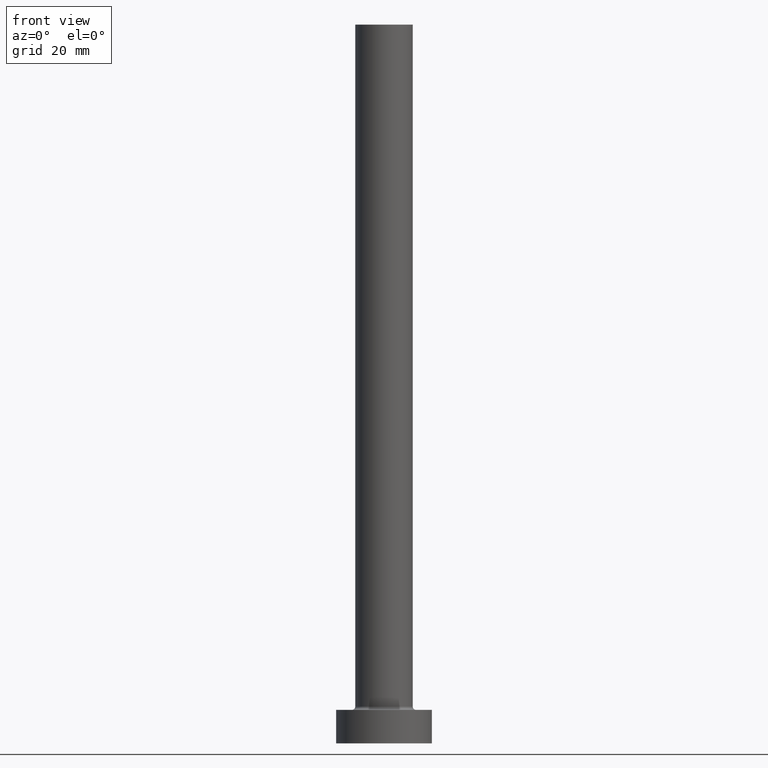
[diagram: clean part render]
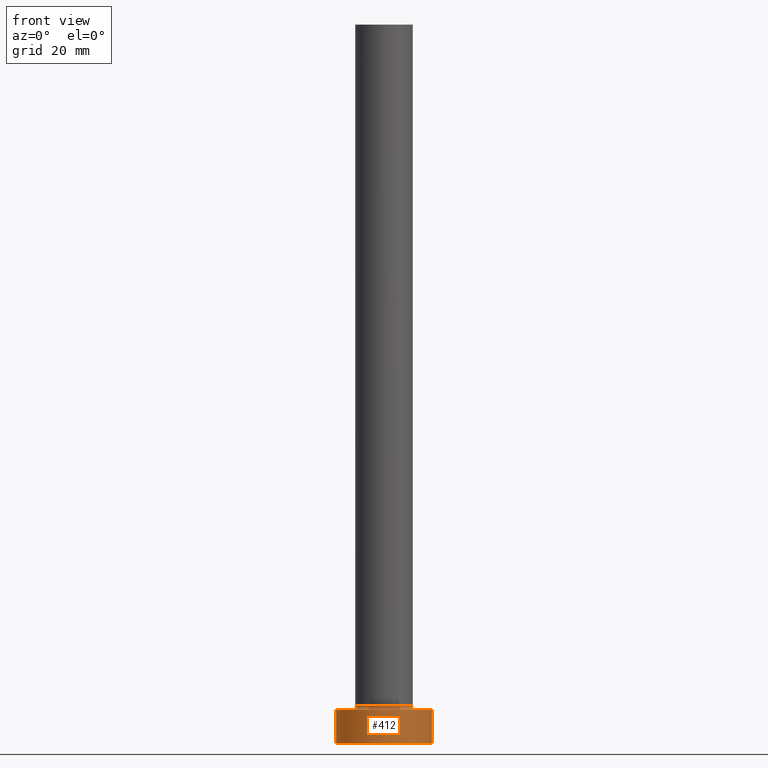
[diagram: same view with one face highlighted and labeled with its STEP entity id]
A machine part, front view. The second image highlights one B-rep face of the part: STEP entity #412.
In plain terms, the highlighted cylindrical surface (partial cylindrical patch) has radius 10 mm, axis along (-0, -0, -1).
Its self-contained STEP definition (entity closure, byte-faithful):
#4 = ORIENTED_EDGE ( 'NONE', *, *, #384, .F. ) ;
#11 = CIRCLE ( 'NONE', #103, 10.00000000000000000 ) ;
#14 = CARTESIAN_POINT ( 'NONE',  ( -10.00000000000000000, 0.000000000000000000, 7.000000000000000000 ) ) ;
#16 = LINE ( 'NONE', #14, #440 ) ;
#21 = DIRECTION ( 'NONE',  ( 0.000000000000000000, 0.000000000000000000, 1.000000000000000000 ) ) ;
#29 = CARTESIAN_POINT ( 'NONE',  ( 0.000000000000000000, 0.000000000000000000, 0.000000000000000000 ) ) ;
#89 = LINE ( 'NONE', #255, #253 ) ;
#91 = ORIENTED_EDGE ( 'NONE', *, *, #201, .F. ) ;
#94 = DIRECTION ( 'NONE',  ( 1.000000000000000000, 0.000000000000000000, 0.000000000000000000 ) ) ;
#103 = AXIS2_PLACEMENT_3D ( 'NONE', #29, #209, #94 ) ;
#106 = ORIENTED_EDGE ( 'NONE', *, *, #194, .T. ) ;
#113 = CARTESIAN_POINT ( 'NONE',  ( 10.00000000000000000, 1.224646799147353256E-15, 7.000000000000000000 ) ) ;
#134 = AXIS2_PLACEMENT_3D ( 'NONE', #233, #197, #341 ) ;
#142 = ORIENTED_EDGE ( 'NONE', *, *, #338, .T. ) ;
#156 = DIRECTION ( 'NONE',  ( -0.000000000000000000, -0.000000000000000000, -1.000000000000000000 ) ) ;
#158 = VERTEX_POINT ( 'NONE', #113 ) ;
#160 = DIRECTION ( 'NONE',  ( 1.000000000000000000, 0.000000000000000000, 0.000000000000000000 ) ) ;
#164 = CARTESIAN_POINT ( 'NONE',  ( 10.00000000000000000, 1.224646799147353256E-15, 0.000000000000000000 ) ) ;
#170 = CARTESIAN_POINT ( 'NONE',  ( -10.00000000000000000, 0.000000000000000000, 7.000000000000000000 ) ) ;
#184 = CARTESIAN_POINT ( 'NONE',  ( -10.00000000000000000, 0.000000000000000000, 0.000000000000000000 ) ) ;
#190 = DIRECTION ( 'NONE',  ( -0.000000000000000000, -0.000000000000000000, -1.000000000000000000 ) ) ;
#194 = EDGE_CURVE ( 'NONE', #431, #225, #16, .T. ) ;
#197 = DIRECTION ( 'NONE',  ( -0.000000000000000000, -0.000000000000000000, -1.000000000000000000 ) ) ;
#201 = EDGE_CURVE ( 'NONE', #158, #323, #89, .T. ) ;
#209 = DIRECTION ( 'NONE',  ( 0.000000000000000000, 0.000000000000000000, 1.000000000000000000 ) ) ;
#225 = VERTEX_POINT ( 'NONE', #184 ) ;
#233 = CARTESIAN_POINT ( 'NONE',  ( 0.000000000000000000, 0.000000000000000000, 7.000000000000000000 ) ) ;
#253 = VECTOR ( 'NONE', #190, 1000.000000000000000 ) ;
#255 = CARTESIAN_POINT ( 'NONE',  ( 10.00000000000000000, 1.224646799147353256E-15, 7.000000000000000000 ) ) ;
#271 = FACE_OUTER_BOUND ( 'NONE', #289, .T. ) ;
#289 = EDGE_LOOP ( 'NONE', ( #91, #4, #106, #142 ) ) ;
#323 = VERTEX_POINT ( 'NONE', #164 ) ;
#334 = AXIS2_PLACEMENT_3D ( 'NONE', #441, #21, #160 ) ;
#338 = EDGE_CURVE ( 'NONE', #225, #323, #11, .T. ) ;
#341 = DIRECTION ( 'NONE',  ( -1.000000000000000000, 0.000000000000000000, 0.000000000000000000 ) ) ;
#370 = CIRCLE ( 'NONE', #334, 10.00000000000000000 ) ;
#384 = EDGE_CURVE ( 'NONE', #431, #158, #370, .T. ) ;
#412 = ADVANCED_FACE ( 'NONE', ( #271 ), #414, .T. ) ;
#414 = CYLINDRICAL_SURFACE ( 'NONE', #134, 10.00000000000000000 ) ;
#431 = VERTEX_POINT ( 'NONE', #170 ) ;
#440 = VECTOR ( 'NONE', #156, 1000.000000000000000 ) ;
#441 = CARTESIAN_POINT ( 'NONE',  ( 0.000000000000000000, 0.000000000000000000, 7.000000000000000000 ) ) ;